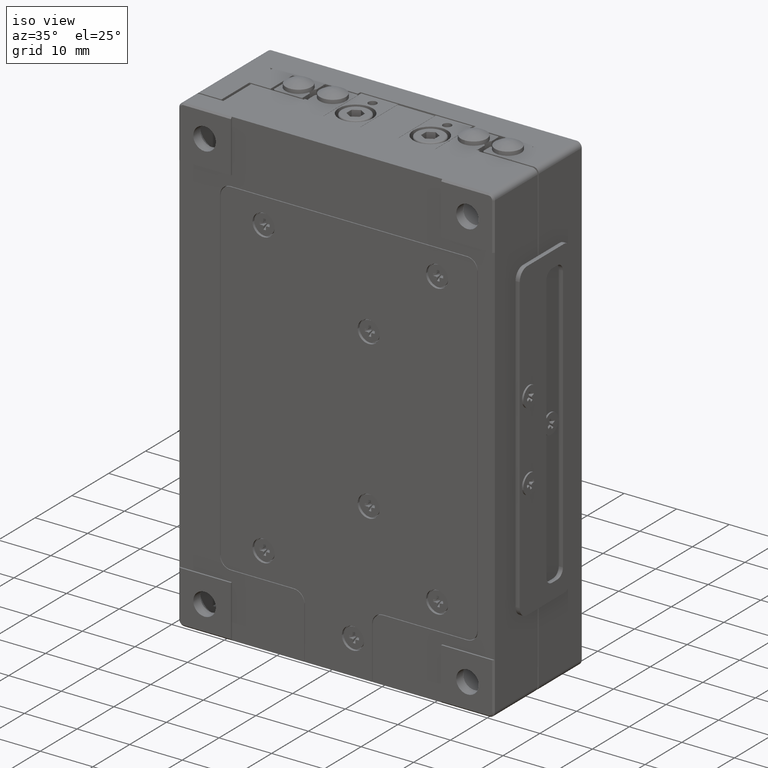
[diagram: clean part render]
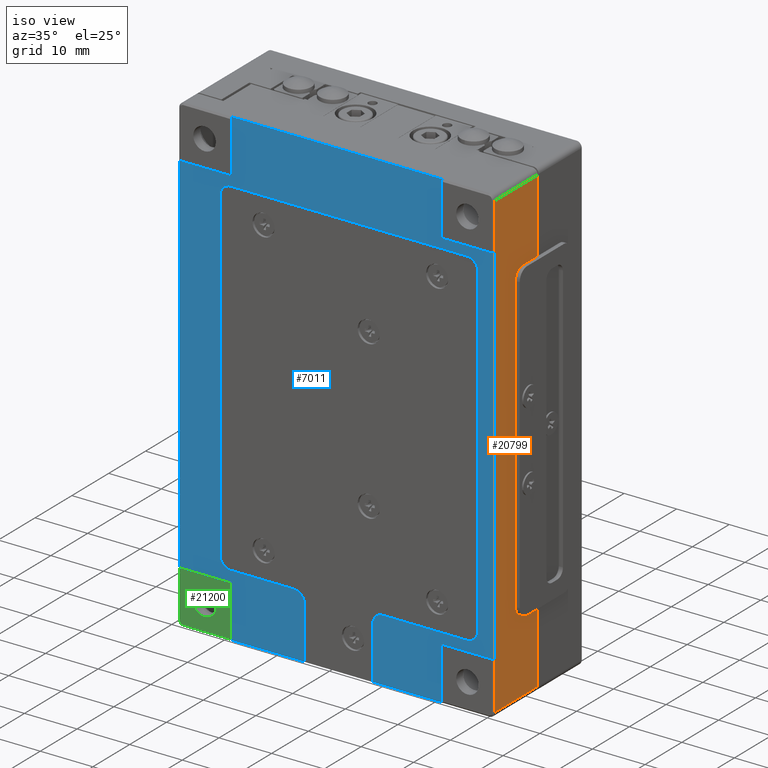
[diagram: same view with three faces highlighted in distinct colors, each labeled with its STEP entity id]
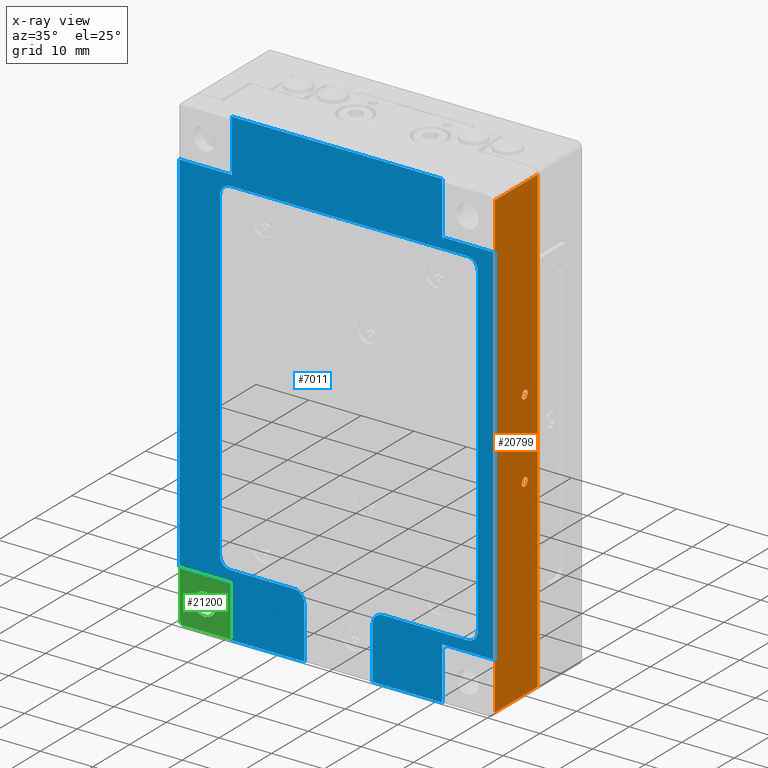
[diagram: x-ray of the same camera — body ghosted, the three highlighted faces saturated]
A machine part, iso view with three faces highlighted in distinct colors.
The next image is the same camera in x-ray (body ghosted, the three faces saturated) — at least one of them is partly hidden behind the body in this view.
Their STEP definitions:

[orange] entity #20799 — the highlighted planar face has unit normal (1, 0, 0).
#293 = DIRECTION ( 'NONE',  ( 0.000000000000000000, 0.000000000000000000, 1.000000000000000000 ) ) ;
#474 = EDGE_LOOP ( 'NONE', ( #22262, #25448 ) ) ;
#532 = CARTESIAN_POINT ( 'NONE',  ( 60.00000000000000000, 8.099999999999999645, -37.50000000000000000 ) ) ;
#789 = VERTEX_POINT ( 'NONE', #798 ) ;
#798 = CARTESIAN_POINT ( 'NONE',  ( 60.00000000000000000, 11.59999999999999964, -89.00000000000000000 ) ) ;
#1796 = EDGE_CURVE ( 'NONE', #25145, #789, #8923, .T. ) ;
#2211 = EDGE_CURVE ( 'NONE', #789, #17023, #4784, .T. ) ;
#2342 = EDGE_CURVE ( 'NONE', #17023, #27026, #15764, .T. ) ;
#2564 = VERTEX_POINT ( 'NONE', #2722 ) ;
#2611 = ORIENTED_EDGE ( 'NONE', *, *, #2342, .T. ) ;
#2722 = CARTESIAN_POINT ( 'NONE',  ( 60.00000000000000000, 8.099999999999999645, -53.29999999999999716 ) ) ;
#2788 = DIRECTION ( 'NONE',  ( 0.000000000000000000, -1.000000000000000000, 0.000000000000000000 ) ) ;
#3375 = AXIS2_PLACEMENT_3D ( 'NONE', #7335, #24654, #22549 ) ;
#3560 = CARTESIAN_POINT ( 'NONE',  ( 60.00000000000000000, 8.099999999999999645, -37.50000000000000000 ) ) ;
#3978 = LINE ( 'NONE', #6920, #8774 ) ;
#4167 = PLANE ( 'NONE',  #25187 ) ;
#4784 = LINE ( 'NONE', #23810, #12517 ) ;
#5511 = CARTESIAN_POINT ( 'NONE',  ( 60.00000000000000000, -5.258380536554699660E-15, -1.000000000000000000 ) ) ;
#5793 = CARTESIAN_POINT ( 'NONE',  ( 60.00000000000000000, 11.59999999999999964, -1.000000000000029976 ) ) ;
#5826 = DIRECTION ( 'NONE',  ( 1.000000000000000000, 0.000000000000000000, 0.000000000000000000 ) ) ;
#6801 = VECTOR ( 'NONE', #8638, 1000.000000000000000 ) ;
#6920 = CARTESIAN_POINT ( 'NONE',  ( 60.00000000000000000, -5.204170427930419706E-15, -90.00000000000000000 ) ) ;
#6985 = CIRCLE ( 'NONE', #3375, 0.7999999999999882760 ) ;
#7335 = CARTESIAN_POINT ( 'NONE',  ( 60.00000000000000000, 8.099999999999999645, -52.50000000000000000 ) ) ;
#8317 = ORIENTED_EDGE ( 'NONE', *, *, #9093, .F. ) ;
#8541 = DIRECTION ( 'NONE',  ( 0.000000000000000000, 1.000000000000000000, 0.000000000000000000 ) ) ;
#8638 = DIRECTION ( 'NONE',  ( 0.000000000000000000, 1.000000000000000000, 0.000000000000000000 ) ) ;
#8663 = DIRECTION ( 'NONE',  ( 0.000000000000000000, 0.000000000000000000, 1.000000000000000000 ) ) ;
#8774 = VECTOR ( 'NONE', #15790, 1000.000000000000000 ) ;
#8923 = LINE ( 'NONE', #26064, #6801 ) ;
#9093 = EDGE_CURVE ( 'NONE', #23279, #11467, #10780, .T. ) ;
#10038 = CARTESIAN_POINT ( 'NONE',  ( 60.00000000000000000, 8.099999999999999645, -52.50000000000000000 ) ) ;
#10322 = ORIENTED_EDGE ( 'NONE', *, *, #23873, .F. ) ;
#10780 = LINE ( 'NONE', #23453, #19990 ) ;
#10861 = CARTESIAN_POINT ( 'NONE',  ( 60.00000000000000000, 0.000000000000000000, -10.00000000000000000 ) ) ;
#11138 = EDGE_CURVE ( 'NONE', #2564, #11852, #6985, .T. ) ;
#11467 = VERTEX_POINT ( 'NONE', #10861 ) ;
#11748 = ORIENTED_EDGE ( 'NONE', *, *, #1796, .T. ) ;
#11852 = VERTEX_POINT ( 'NONE', #15829 ) ;
#12517 = VECTOR ( 'NONE', #293, 1000.000000000000000 ) ;
#12892 = CARTESIAN_POINT ( 'NONE',  ( 60.00000000000000000, 8.099999999999999645, -38.29999999999999716 ) ) ;
#13013 = VERTEX_POINT ( 'NONE', #21227 ) ;
#14172 = ORIENTED_EDGE ( 'NONE', *, *, #2211, .T. ) ;
#14706 = AXIS2_PLACEMENT_3D ( 'NONE', #10038, #18599, #27195 ) ;
#15175 = DIRECTION ( 'NONE',  ( 1.000000000000000000, 0.000000000000000000, 0.000000000000000000 ) ) ;
#15764 = LINE ( 'NONE', #19980, #22407 ) ;
#15790 = DIRECTION ( 'NONE',  ( 0.000000000000000000, 0.000000000000000000, -1.000000000000000000 ) ) ;
#15829 = CARTESIAN_POINT ( 'NONE',  ( 60.00000000000000000, 8.099999999999999645, -51.70000000000000284 ) ) ;
#15870 = CARTESIAN_POINT ( 'NONE',  ( 60.00000000000000000, 0.000000000000000000, -80.00000000000000000 ) ) ;
#16301 = AXIS2_PLACEMENT_3D ( 'NONE', #3560, #5826, #16951 ) ;
#16367 = ORIENTED_EDGE ( 'NONE', *, *, #25544, .T. ) ;
#16706 = FACE_BOUND ( 'NONE', #25369, .T. ) ;
#16951 = DIRECTION ( 'NONE',  ( 0.000000000000000000, 0.000000000000000000, -1.000000000000000000 ) ) ;
#17023 = VERTEX_POINT ( 'NONE', #5793 ) ;
#17120 = CARTESIAN_POINT ( 'NONE',  ( 60.00000000000000000, 11.59999999999999964, -90.00000000000000000 ) ) ;
#17604 = EDGE_CURVE ( 'NONE', #23279, #25145, #22377, .T. ) ;
#17697 = DIRECTION ( 'NONE',  ( 1.000000000000000000, 0.000000000000000000, 0.000000000000000000 ) ) ;
#17933 = ORIENTED_EDGE ( 'NONE', *, *, #26424, .F. ) ;
#18235 = VECTOR ( 'NONE', #20242, 1000.000000000000000 ) ;
#18599 = DIRECTION ( 'NONE',  ( 1.000000000000000000, 0.000000000000000000, 0.000000000000000000 ) ) ;
#19980 = CARTESIAN_POINT ( 'NONE',  ( 60.00000000000000000, -0.2999999999999999889, -1.000000000000000000 ) ) ;
#19990 = VECTOR ( 'NONE', #8663, 1000.000000000000000 ) ;
#20010 = CIRCLE ( 'NONE', #23643, 0.7999999999999882760 ) ;
#20242 = DIRECTION ( 'NONE',  ( 0.000000000000000000, 0.000000000000000000, -1.000000000000000000 ) ) ;
#20799 = ADVANCED_FACE ( 'NONE', ( #22906, #16706, #27816 ), #4167, .T. ) ;
#20804 = CIRCLE ( 'NONE', #16301, 0.7999999999999882760 ) ;
#21227 = CARTESIAN_POINT ( 'NONE',  ( 60.00000000000000000, 8.099999999999999645, -36.70000000000000284 ) ) ;
#22262 = ORIENTED_EDGE ( 'NONE', *, *, #11138, .F. ) ;
#22377 = LINE ( 'NONE', #26723, #18235 ) ;
#22407 = VECTOR ( 'NONE', #2788, 1000.000000000000000 ) ;
#22549 = DIRECTION ( 'NONE',  ( 0.000000000000000000, 0.000000000000000000, -1.000000000000000000 ) ) ;
#22906 = FACE_OUTER_BOUND ( 'NONE', #23782, .T. ) ;
#23279 = VERTEX_POINT ( 'NONE', #15870 ) ;
#23453 = CARTESIAN_POINT ( 'NONE',  ( 60.00000000000000000, 0.000000000000000000, -90.00000000000000000 ) ) ;
#23643 = AXIS2_PLACEMENT_3D ( 'NONE', #532, #17697, #26422 ) ;
#23782 = EDGE_LOOP ( 'NONE', ( #8317, #27553, #11748, #14172, #2611, #16367 ) ) ;
#23810 = CARTESIAN_POINT ( 'NONE',  ( 60.00000000000000000, 11.59999999999999964, -90.00000000000000000 ) ) ;
#23873 = EDGE_CURVE ( 'NONE', #13013, #26724, #20804, .T. ) ;
#24654 = DIRECTION ( 'NONE',  ( 1.000000000000000000, 0.000000000000000000, 0.000000000000000000 ) ) ;
#25145 = VERTEX_POINT ( 'NONE', #27088 ) ;
#25187 = AXIS2_PLACEMENT_3D ( 'NONE', #17120, #15175, #8541 ) ;
#25369 = EDGE_LOOP ( 'NONE', ( #17933, #10322 ) ) ;
#25448 = ORIENTED_EDGE ( 'NONE', *, *, #27093, .F. ) ;
#25544 = EDGE_CURVE ( 'NONE', #27026, #11467, #3978, .T. ) ;
#26064 = CARTESIAN_POINT ( 'NONE',  ( 60.00000000000000000, 11.59999999999999964, -89.00000000000000000 ) ) ;
#26343 = CIRCLE ( 'NONE', #14706, 0.7999999999999882760 ) ;
#26422 = DIRECTION ( 'NONE',  ( 0.000000000000000000, 0.000000000000000000, -1.000000000000000000 ) ) ;
#26424 = EDGE_CURVE ( 'NONE', #26724, #13013, #20010, .T. ) ;
#26723 = CARTESIAN_POINT ( 'NONE',  ( 60.00000000000000000, -1.908195823574490013E-14, -90.00000000000000000 ) ) ;
#26724 = VERTEX_POINT ( 'NONE', #12892 ) ;
#27026 = VERTEX_POINT ( 'NONE', #5511 ) ;
#27088 = CARTESIAN_POINT ( 'NONE',  ( 60.00000000000000000, -1.908195823574490013E-14, -89.00000000000000000 ) ) ;
#27093 = EDGE_CURVE ( 'NONE', #11852, #2564, #26343, .T. ) ;
#27195 = DIRECTION ( 'NONE',  ( 0.000000000000000000, 0.000000000000000000, -1.000000000000000000 ) ) ;
#27553 = ORIENTED_EDGE ( 'NONE', *, *, #17604, .T. ) ;
#27816 = FACE_BOUND ( 'NONE', #474, .T. ) ;

[blue] entity #7011 — the highlighted planar face has unit normal (0, -1, 0).
#73 = CARTESIAN_POINT ( 'NONE',  ( 23.75000000000000000, -1.908195823574490013E-14, -90.00000000000000000 ) ) ;
#76 = CARTESIAN_POINT ( 'NONE',  ( 3.061616997868384620E-15, 0.000000000000000000, -10.00000000000000000 ) ) ;
#77 = ORIENTED_EDGE ( 'NONE', *, *, #27442, .T. ) ;
#147 = AXIS2_PLACEMENT_3D ( 'NONE', #679, #7136, #15872 ) ;
#157 = DIRECTION ( 'NONE',  ( 0.000000000000000000, 0.000000000000000000, -1.000000000000000000 ) ) ;
#178 = ORIENTED_EDGE ( 'NONE', *, *, #25420, .T. ) ;
#218 = VERTEX_POINT ( 'NONE', #27064 ) ;
#295 = AXIS2_PLACEMENT_3D ( 'NONE', #10452, #6354, #23401 ) ;
#427 = DIRECTION ( 'NONE',  ( 0.000000000000000000, 0.000000000000000000, -1.000000000000000000 ) ) ;
#679 = CARTESIAN_POINT ( 'NONE',  ( 60.00000000000000000, 0.000000000000000000, -90.00000000000000000 ) ) ;
#711 = CARTESIAN_POINT ( 'NONE',  ( 50.00000000000000000, 0.000000000000000000, -10.00000000000000000 ) ) ;
#844 = CARTESIAN_POINT ( 'NONE',  ( 38.75000000000000000, 0.000000000000000000, -78.00000000000000000 ) ) ;
#963 = DIRECTION ( 'NONE',  ( 0.000000000000000000, 0.000000000000000000, 1.000000000000000000 ) ) ;
#1146 = LINE ( 'NONE', #9757, #1189 ) ;
#1189 = VECTOR ( 'NONE', #7621, 1000.000000000000000 ) ;
#1205 = VECTOR ( 'NONE', #4916, 1000.000000000000000 ) ;
#1207 = DIRECTION ( 'NONE',  ( 0.000000000000000000, 0.000000000000000000, -1.000000000000000000 ) ) ;
#1337 = VERTEX_POINT ( 'NONE', #20042 ) ;
#1445 = ORIENTED_EDGE ( 'NONE', *, *, #5601, .F. ) ;
#1449 = VECTOR ( 'NONE', #15526, 1000.000000000000000 ) ;
#1534 = DIRECTION ( 'NONE',  ( 1.000000000000000000, 0.000000000000000000, 0.000000000000000000 ) ) ;
#1537 = DIRECTION ( 'NONE',  ( 0.000000000000000000, 0.000000000000000000, -1.000000000000000000 ) ) ;
#1751 = CARTESIAN_POINT ( 'NONE',  ( 60.00000000000000000, 0.000000000000000000, -78.00000000000000000 ) ) ;
#1909 = VECTOR ( 'NONE', #21613, 1000.000000000000000 ) ;
#1989 = LINE ( 'NONE', #16921, #13695 ) ;
#2019 = DIRECTION ( 'NONE',  ( 0.000000000000000000, 1.000000000000000000, 0.000000000000000000 ) ) ;
#2156 = VECTOR ( 'NONE', #963, 1000.000000000000000 ) ;
#2265 = VECTOR ( 'NONE', #25672, 1000.000000000000000 ) ;
#2304 = DIRECTION ( 'NONE',  ( 0.000000000000000000, 0.000000000000000000, -1.000000000000000000 ) ) ;
#2443 = EDGE_CURVE ( 'NONE', #17312, #5944, #10799, .T. ) ;
#2595 = CARTESIAN_POINT ( 'NONE',  ( 0.000000000000000000, 0.000000000000000000, -10.00000000000000000 ) ) ;
#3088 = DIRECTION ( 'NONE',  ( 0.000000000000000000, 0.000000000000000000, -1.000000000000000000 ) ) ;
#3304 = CARTESIAN_POINT ( 'NONE',  ( 56.75000000000000000, 0.000000000000000000, -76.00000000000000000 ) ) ;
#3354 = CIRCLE ( 'NONE', #12857, 2.000000000000001776 ) ;
#3402 = VERTEX_POINT ( 'NONE', #8050 ) ;
#3429 = VERTEX_POINT ( 'NONE', #21559 ) ;
#3439 = ORIENTED_EDGE ( 'NONE', *, *, #10747, .T. ) ;
#3587 = LINE ( 'NONE', #7542, #13351 ) ;
#3693 = DIRECTION ( 'NONE',  ( 0.000000000000000000, 0.000000000000000000, -1.000000000000000000 ) ) ;
#3716 = VERTEX_POINT ( 'NONE', #844 ) ;
#3880 = ORIENTED_EDGE ( 'NONE', *, *, #8095, .T. ) ;
#3924 = CARTESIAN_POINT ( 'NONE',  ( 56.75000000000000000, 0.000000000000000000, -14.00000000000000000 ) ) ;
#4220 = VERTEX_POINT ( 'NONE', #73 ) ;
#4544 = ORIENTED_EDGE ( 'NONE', *, *, #27170, .T. ) ;
#4550 = VERTEX_POINT ( 'NONE', #16973 ) ;
#4815 = LINE ( 'NONE', #17620, #11247 ) ;
#4857 = ORIENTED_EDGE ( 'NONE', *, *, #20616, .T. ) ;
#4916 = DIRECTION ( 'NONE',  ( 1.000000000000000000, 0.000000000000000000, 0.000000000000000000 ) ) ;
#5022 = LINE ( 'NONE', #20092, #18890 ) ;
#5152 = CARTESIAN_POINT ( 'NONE',  ( 50.00000000000000000, 0.000000000000000000, -1.224646799147351876E-15 ) ) ;
#5237 = ORIENTED_EDGE ( 'NONE', *, *, #18356, .F. ) ;
#5601 = EDGE_CURVE ( 'NONE', #18608, #16328, #23777, .T. ) ;
#5765 = EDGE_CURVE ( 'NONE', #22269, #4220, #11796, .T. ) ;
#5766 = ORIENTED_EDGE ( 'NONE', *, *, #27059, .T. ) ;
#5919 = CARTESIAN_POINT ( 'NONE',  ( 54.75000000000000000, 0.000000000000000000, -12.00000000000000000 ) ) ;
#5944 = VERTEX_POINT ( 'NONE', #25434 ) ;
#6056 = VECTOR ( 'NONE', #27524, 1000.000000000000000 ) ;
#6061 = CARTESIAN_POINT ( 'NONE',  ( 10.00000000000000000, 0.000000000000000000, 0.000000000000000000 ) ) ;
#6354 = DIRECTION ( 'NONE',  ( 0.000000000000000000, -1.000000000000000000, 0.000000000000000000 ) ) ;
#6412 = DIRECTION ( 'NONE',  ( 0.000000000000000000, 1.000000000000000000, 0.000000000000000000 ) ) ;
#6462 = VECTOR ( 'NONE', #12823, 1000.000000000000000 ) ;
#6486 = LINE ( 'NONE', #13526, #12688 ) ;
#6523 = CARTESIAN_POINT ( 'NONE',  ( 10.00000000000000000, 0.000000000000000000, -90.00000000000000000 ) ) ;
#6576 = CIRCLE ( 'NONE', #20493, 2.000000000000000000 ) ;
#6952 = CARTESIAN_POINT ( 'NONE',  ( 7.750000000000000000, 0.000000000000000000, -14.00000000000000000 ) ) ;
#7011 = ADVANCED_FACE ( 'NONE', ( #17968 ), #22219, .T. ) ;
#7035 = DIRECTION ( 'NONE',  ( 2.102695122396129669E-16, 0.000000000000000000, -1.000000000000000000 ) ) ;
#7136 = DIRECTION ( 'NONE',  ( 0.000000000000000000, -1.000000000000000000, 0.000000000000000000 ) ) ;
#7174 = LINE ( 'NONE', #711, #1205 ) ;
#7224 = VERTEX_POINT ( 'NONE', #25569 ) ;
#7542 = CARTESIAN_POINT ( 'NONE',  ( 7.750000000000000000, 0.000000000000000000, -90.00000000000000000 ) ) ;
#7595 = VERTEX_POINT ( 'NONE', #9659 ) ;
#7621 = DIRECTION ( 'NONE',  ( 0.000000000000000000, 0.000000000000000000, 1.000000000000000000 ) ) ;
#7893 = DIRECTION ( 'NONE',  ( 0.000000000000000000, 1.000000000000000000, 0.000000000000000000 ) ) ;
#7931 = CARTESIAN_POINT ( 'NONE',  ( 38.75000000000000000, 0.000000000000000000, -80.00000000000000000 ) ) ;
#8050 = CARTESIAN_POINT ( 'NONE',  ( 10.00000000000000000, 0.000000000000000000, -10.00000000000000000 ) ) ;
#8095 = EDGE_CURVE ( 'NONE', #3429, #17234, #1989, .T. ) ;
#8297 = CIRCLE ( 'NONE', #18628, 2.000000000000001776 ) ;
#8311 = ORIENTED_EDGE ( 'NONE', *, *, #27313, .F. ) ;
#8603 = CARTESIAN_POINT ( 'NONE',  ( 10.00000000000000000, 0.000000000000000000, -80.00000000000000000 ) ) ;
#8618 = VECTOR ( 'NONE', #17553, 1000.000000000000000 ) ;
#8663 = DIRECTION ( 'NONE',  ( 0.000000000000000000, 0.000000000000000000, 1.000000000000000000 ) ) ;
#8873 = CIRCLE ( 'NONE', #21903, 2.000000000000000000 ) ;
#9005 = ORIENTED_EDGE ( 'NONE', *, *, #15778, .T. ) ;
#9093 = EDGE_CURVE ( 'NONE', #23279, #11467, #10780, .T. ) ;
#9121 = EDGE_CURVE ( 'NONE', #218, #3716, #12495, .T. ) ;
#9186 = VERTEX_POINT ( 'NONE', #6952 ) ;
#9302 = LINE ( 'NONE', #22933, #2156 ) ;
#9454 = ORIENTED_EDGE ( 'NONE', *, *, #2443, .F. ) ;
#9625 = VERTEX_POINT ( 'NONE', #19966 ) ;
#9659 = CARTESIAN_POINT ( 'NONE',  ( 50.00000000000000000, 0.000000000000000000, -80.00000000000000000 ) ) ;
#9757 = CARTESIAN_POINT ( 'NONE',  ( 23.75000000000000000, 0.000000000000000000, -90.00000000000000000 ) ) ;
#10452 = CARTESIAN_POINT ( 'NONE',  ( 21.75000000000000000, 0.000000000000000000, -80.00000000000000000 ) ) ;
#10459 = EDGE_CURVE ( 'NONE', #9186, #4550, #6576, .T. ) ;
#10495 = LINE ( 'NONE', #18914, #2265 ) ;
#10747 = EDGE_CURVE ( 'NONE', #3716, #7224, #3354, .T. ) ;
#10780 = LINE ( 'NONE', #23453, #19990 ) ;
#10799 = LINE ( 'NONE', #14501, #21059 ) ;
#10861 = CARTESIAN_POINT ( 'NONE',  ( 60.00000000000000000, 0.000000000000000000, -10.00000000000000000 ) ) ;
#11216 = CARTESIAN_POINT ( 'NONE',  ( 36.75000000000000000, -1.908195823574490013E-14, -90.00000000000000000 ) ) ;
#11247 = VECTOR ( 'NONE', #17218, 1000.000000000000000 ) ;
#11467 = VERTEX_POINT ( 'NONE', #10861 ) ;
#11517 = LINE ( 'NONE', #5152, #27274 ) ;
#11788 = ORIENTED_EDGE ( 'NONE', *, *, #9121, .T. ) ;
#11796 = LINE ( 'NONE', #18374, #20286 ) ;
#11798 = VERTEX_POINT ( 'NONE', #17921 ) ;
#12495 = LINE ( 'NONE', #1751, #6056 ) ;
#12688 = VECTOR ( 'NONE', #7035, 1000.000000000000000 ) ;
#12823 = DIRECTION ( 'NONE',  ( 1.000000000000000000, 0.000000000000000000, 0.000000000000000000 ) ) ;
#12857 = AXIS2_PLACEMENT_3D ( 'NONE', #7931, #16518, #3693 ) ;
#13102 = VERTEX_POINT ( 'NONE', #13486 ) ;
#13108 = ORIENTED_EDGE ( 'NONE', *, *, #18009, .T. ) ;
#13351 = VECTOR ( 'NONE', #22615, 1000.000000000000000 ) ;
#13486 = CARTESIAN_POINT ( 'NONE',  ( 23.75000000000000000, 0.000000000000000000, -80.00000000000000000 ) ) ;
#13526 = CARTESIAN_POINT ( 'NONE',  ( 56.75000000000000000, 0.000000000000000000, -90.00000000000000000 ) ) ;
#13640 = DIRECTION ( 'NONE',  ( 1.000000000000000000, 0.000000000000000000, 7.080503983578799386E-17 ) ) ;
#13695 = VECTOR ( 'NONE', #21143, 1000.000000000000000 ) ;
#13699 = CARTESIAN_POINT ( 'NONE',  ( 60.00000000000000000, 0.000000000000000000, -80.00000000000000000 ) ) ;
#13878 = VERTEX_POINT ( 'NONE', #5919 ) ;
#14373 = EDGE_CURVE ( 'NONE', #16328, #21020, #18695, .T. ) ;
#14501 = CARTESIAN_POINT ( 'NONE',  ( 60.00000000000000000, 0.000000000000000000, 0.000000000000000000 ) ) ;
#14667 = VERTEX_POINT ( 'NONE', #3304 ) ;
#14786 = CARTESIAN_POINT ( 'NONE',  ( 60.00000000000000000, 0.000000000000000000, -90.00000000000000000 ) ) ;
#14871 = ORIENTED_EDGE ( 'NONE', *, *, #18851, .F. ) ;
#15057 = DIRECTION ( 'NONE',  ( 0.000000000000000000, 0.000000000000000000, 1.000000000000000000 ) ) ;
#15149 = CIRCLE ( 'NONE', #295, 2.000000000000001776 ) ;
#15526 = DIRECTION ( 'NONE',  ( -1.000000000000000000, 0.000000000000000000, 1.387778780781446070E-15 ) ) ;
#15778 = EDGE_CURVE ( 'NONE', #23569, #1337, #16732, .T. ) ;
#15870 = CARTESIAN_POINT ( 'NONE',  ( 60.00000000000000000, 0.000000000000000000, -80.00000000000000000 ) ) ;
#15872 = DIRECTION ( 'NONE',  ( 0.000000000000000000, 0.000000000000000000, -1.000000000000000000 ) ) ;
#16024 = ORIENTED_EDGE ( 'NONE', *, *, #26043, .F. ) ;
#16328 = VERTEX_POINT ( 'NONE', #26388 ) ;
#16518 = DIRECTION ( 'NONE',  ( 0.000000000000000000, -1.000000000000000000, 0.000000000000000000 ) ) ;
#16535 = ORIENTED_EDGE ( 'NONE', *, *, #20106, .T. ) ;
#16672 = ORIENTED_EDGE ( 'NONE', *, *, #9093, .T. ) ;
#16732 = LINE ( 'NONE', #14786, #6462 ) ;
#16921 = CARTESIAN_POINT ( 'NONE',  ( 60.00000000000000000, 0.000000000000000000, -78.00000000000000000 ) ) ;
#16973 = CARTESIAN_POINT ( 'NONE',  ( 9.750000000000000000, 0.000000000000000000, -12.00000000000000000 ) ) ;
#17008 = CARTESIAN_POINT ( 'NONE',  ( 0.000000000000000000, 0.000000000000000000, -90.00000000000000000 ) ) ;
#17218 = DIRECTION ( 'NONE',  ( 0.000000000000000000, 0.000000000000000000, -1.000000000000000000 ) ) ;
#17234 = VERTEX_POINT ( 'NONE', #23526 ) ;
#17312 = VERTEX_POINT ( 'NONE', #6061 ) ;
#17553 = DIRECTION ( 'NONE',  ( -1.000000000000000000, 0.000000000000000000, 0.000000000000000000 ) ) ;
#17620 = CARTESIAN_POINT ( 'NONE',  ( 36.75000000000000000, 0.000000000000000000, -90.00000000000000000 ) ) ;
#17637 = AXIS2_PLACEMENT_3D ( 'NONE', #21975, #2019, #427 ) ;
#17921 = CARTESIAN_POINT ( 'NONE',  ( 50.00000000000000000, 0.000000000000000000, -10.00000000000000000 ) ) ;
#17957 = EDGE_CURVE ( 'NONE', #5944, #11798, #11517, .T. ) ;
#17968 = FACE_OUTER_BOUND ( 'NONE', #19442, .T. ) ;
#18009 = EDGE_CURVE ( 'NONE', #9625, #9186, #3587, .T. ) ;
#18158 = ORIENTED_EDGE ( 'NONE', *, *, #14373, .F. ) ;
#18201 = VECTOR ( 'NONE', #157, 1000.000000000000000 ) ;
#18299 = CARTESIAN_POINT ( 'NONE',  ( 54.75000000000000000, 0.000000000000000000, -76.00000000000000000 ) ) ;
#18356 = EDGE_CURVE ( 'NONE', #21020, #3402, #19343, .T. ) ;
#18374 = CARTESIAN_POINT ( 'NONE',  ( 60.00000000000000000, 0.000000000000000000, -90.00000000000000000 ) ) ;
#18452 = ORIENTED_EDGE ( 'NONE', *, *, #10459, .T. ) ;
#18608 = VERTEX_POINT ( 'NONE', #8603 ) ;
#18628 = AXIS2_PLACEMENT_3D ( 'NONE', #18299, #7893, #3088 ) ;
#18695 = LINE ( 'NONE', #17008, #19884 ) ;
#18851 = EDGE_CURVE ( 'NONE', #22269, #18608, #9302, .T. ) ;
#18890 = VECTOR ( 'NONE', #13640, 1000.000000000000000 ) ;
#18914 = CARTESIAN_POINT ( 'NONE',  ( 10.00000000000000000, 0.000000000000000000, -10.00000000000000000 ) ) ;
#19343 = LINE ( 'NONE', #76, #1909 ) ;
#19442 = EDGE_LOOP ( 'NONE', ( #5766, #4544, #3880, #24744, #13108, #18452, #4857, #77, #22841, #178, #11788, #3439, #16535, #9005, #16024, #25822, #16672, #8311, #26216, #9454, #21595, #5237, #18158, #1445, #14871, #23460 ) ) ;
#19884 = VECTOR ( 'NONE', #15057, 1000.000000000000000 ) ;
#19966 = CARTESIAN_POINT ( 'NONE',  ( 7.750000000000000000, 0.000000000000000000, -76.00000000000000000 ) ) ;
#19990 = VECTOR ( 'NONE', #8663, 1000.000000000000000 ) ;
#20042 = CARTESIAN_POINT ( 'NONE',  ( 50.00000000000000000, 0.000000000000000000, -90.00000000000000000 ) ) ;
#20092 = CARTESIAN_POINT ( 'NONE',  ( 60.00000000000000000, 0.000000000000000000, -12.00000000000000000 ) ) ;
#20106 = EDGE_CURVE ( 'NONE', #7224, #23569, #4815, .T. ) ;
#20286 = VECTOR ( 'NONE', #26972, 1000.000000000000000 ) ;
#20493 = AXIS2_PLACEMENT_3D ( 'NONE', #23737, #6412, #2304 ) ;
#20616 = EDGE_CURVE ( 'NONE', #4550, #13878, #5022, .T. ) ;
#20675 = DIRECTION ( 'NONE',  ( 0.000000000000000000, 1.000000000000000000, 0.000000000000000000 ) ) ;
#21020 = VERTEX_POINT ( 'NONE', #2595 ) ;
#21059 = VECTOR ( 'NONE', #1534, 1000.000000000000000 ) ;
#21143 = DIRECTION ( 'NONE',  ( -1.000000000000000000, 0.000000000000000000, 0.000000000000000000 ) ) ;
#21257 = EDGE_CURVE ( 'NONE', #3402, #17312, #10495, .T. ) ;
#21504 = EDGE_CURVE ( 'NONE', #27656, #14667, #6486, .T. ) ;
#21559 = CARTESIAN_POINT ( 'NONE',  ( 21.75000000000000000, 0.000000000000000000, -78.00000000000000000 ) ) ;
#21595 = ORIENTED_EDGE ( 'NONE', *, *, #21257, .F. ) ;
#21613 = DIRECTION ( 'NONE',  ( 1.000000000000000000, 0.000000000000000000, 0.000000000000000000 ) ) ;
#21903 = AXIS2_PLACEMENT_3D ( 'NONE', #24500, #20675, #1537 ) ;
#21975 = CARTESIAN_POINT ( 'NONE',  ( 9.750000000000000000, 0.000000000000000000, -76.00000000000000000 ) ) ;
#22070 = CARTESIAN_POINT ( 'NONE',  ( 10.00000000000000000, 0.000000000000000000, -80.00000000000000000 ) ) ;
#22159 = CIRCLE ( 'NONE', #17637, 2.000000000000001776 ) ;
#22219 = PLANE ( 'NONE',  #147 ) ;
#22269 = VERTEX_POINT ( 'NONE', #6523 ) ;
#22308 = EDGE_CURVE ( 'NONE', #23279, #7595, #24242, .T. ) ;
#22615 = DIRECTION ( 'NONE',  ( -1.182766006347821876E-16, 0.000000000000000000, 1.000000000000000000 ) ) ;
#22841 = ORIENTED_EDGE ( 'NONE', *, *, #21504, .T. ) ;
#22933 = CARTESIAN_POINT ( 'NONE',  ( 10.00000000000000000, 0.000000000000000000, -90.00000000000000000 ) ) ;
#23279 = VERTEX_POINT ( 'NONE', #15870 ) ;
#23401 = DIRECTION ( 'NONE',  ( 0.000000000000000000, 0.000000000000000000, -1.000000000000000000 ) ) ;
#23453 = CARTESIAN_POINT ( 'NONE',  ( 60.00000000000000000, 0.000000000000000000, -90.00000000000000000 ) ) ;
#23460 = ORIENTED_EDGE ( 'NONE', *, *, #5765, .T. ) ;
#23526 = CARTESIAN_POINT ( 'NONE',  ( 9.750000000000000000, 0.000000000000000000, -78.00000000000000000 ) ) ;
#23569 = VERTEX_POINT ( 'NONE', #11216 ) ;
#23737 = CARTESIAN_POINT ( 'NONE',  ( 9.750000000000000000, 0.000000000000000000, -14.00000000000000000 ) ) ;
#23777 = LINE ( 'NONE', #22070, #8618 ) ;
#23940 = LINE ( 'NONE', #26315, #18201 ) ;
#24063 = EDGE_CURVE ( 'NONE', #17234, #9625, #22159, .T. ) ;
#24242 = LINE ( 'NONE', #13699, #1449 ) ;
#24500 = CARTESIAN_POINT ( 'NONE',  ( 54.75000000000000000, 0.000000000000000000, -14.00000000000000000 ) ) ;
#24744 = ORIENTED_EDGE ( 'NONE', *, *, #24063, .T. ) ;
#25420 = EDGE_CURVE ( 'NONE', #14667, #218, #8297, .T. ) ;
#25434 = CARTESIAN_POINT ( 'NONE',  ( 50.00000000000000000, 0.000000000000000000, -1.224646799147351876E-15 ) ) ;
#25569 = CARTESIAN_POINT ( 'NONE',  ( 36.75000000000000000, 0.000000000000000000, -80.00000000000000000 ) ) ;
#25672 = DIRECTION ( 'NONE',  ( 0.000000000000000000, 0.000000000000000000, 1.000000000000000000 ) ) ;
#25822 = ORIENTED_EDGE ( 'NONE', *, *, #22308, .F. ) ;
#26043 = EDGE_CURVE ( 'NONE', #7595, #1337, #23940, .T. ) ;
#26216 = ORIENTED_EDGE ( 'NONE', *, *, #17957, .F. ) ;
#26315 = CARTESIAN_POINT ( 'NONE',  ( 50.00000000000000000, 0.000000000000000000, -80.00000000000000000 ) ) ;
#26388 = CARTESIAN_POINT ( 'NONE',  ( 0.000000000000000000, 0.000000000000000000, -80.00000000000000000 ) ) ;
#26972 = DIRECTION ( 'NONE',  ( 1.000000000000000000, 0.000000000000000000, 0.000000000000000000 ) ) ;
#27059 = EDGE_CURVE ( 'NONE', #4220, #13102, #1146, .T. ) ;
#27064 = CARTESIAN_POINT ( 'NONE',  ( 54.75000000000000000, 0.000000000000000000, -78.00000000000000000 ) ) ;
#27170 = EDGE_CURVE ( 'NONE', #13102, #3429, #15149, .T. ) ;
#27274 = VECTOR ( 'NONE', #1207, 1000.000000000000000 ) ;
#27313 = EDGE_CURVE ( 'NONE', #11798, #11467, #7174, .T. ) ;
#27442 = EDGE_CURVE ( 'NONE', #13878, #27656, #8873, .T. ) ;
#27524 = DIRECTION ( 'NONE',  ( -1.000000000000000000, 0.000000000000000000, 0.000000000000000000 ) ) ;
#27656 = VERTEX_POINT ( 'NONE', #3924 ) ;

[green] entity #21200 — the highlighted planar face has unit normal (0, -1, 0).
#47 = DIRECTION ( 'NONE',  ( -1.000000000000000000, 0.000000000000000000, 0.000000000000000000 ) ) ;
#145 = CARTESIAN_POINT ( 'NONE',  ( 10.00000000000000000, -0.2999999999999999889, -89.70000000000000284 ) ) ;
#1606 = DIRECTION ( 'NONE',  ( 0.000000000000000000, -1.000000000000000000, 0.000000000000000000 ) ) ;
#1741 = CARTESIAN_POINT ( 'NONE',  ( 0.000000000000000000, -0.2999999999999999889, 0.000000000000000000 ) ) ;
#2041 = VERTEX_POINT ( 'NONE', #21276 ) ;
#3705 = VERTEX_POINT ( 'NONE', #4918 ) ;
#4394 = DIRECTION ( 'NONE',  ( 0.000000000000000000, 0.000000000000000000, 1.000000000000000000 ) ) ;
#4517 = EDGE_CURVE ( 'NONE', #3705, #5881, #14879, .T. ) ;
#4918 = CARTESIAN_POINT ( 'NONE',  ( 0.2999999999999810041, -0.2999999999999999889, -80.00000000000000000 ) ) ;
#5041 = ORIENTED_EDGE ( 'NONE', *, *, #4517, .T. ) ;
#5554 = ORIENTED_EDGE ( 'NONE', *, *, #10849, .T. ) ;
#5579 = CIRCLE ( 'NONE', #9636, 0.7000000000000200506 ) ;
#5881 = VERTEX_POINT ( 'NONE', #27682 ) ;
#6107 = CARTESIAN_POINT ( 'NONE',  ( 10.00000000000000000, -0.2999999999999999889, -80.00000000000000000 ) ) ;
#6394 = EDGE_CURVE ( 'NONE', #17300, #21333, #15389, .T. ) ;
#7213 = CARTESIAN_POINT ( 'NONE',  ( 1.000000000000000000, -0.2999999999999999889, -89.00000000000000000 ) ) ;
#7353 = ORIENTED_EDGE ( 'NONE', *, *, #7990, .T. ) ;
#7626 = ORIENTED_EDGE ( 'NONE', *, *, #21566, .T. ) ;
#7709 = VECTOR ( 'NONE', #12640, 1000.000000000000000 ) ;
#7767 = DIRECTION ( 'NONE',  ( 0.000000000000000000, 0.000000000000000000, -1.000000000000000000 ) ) ;
#7799 = FACE_BOUND ( 'NONE', #16542, .T. ) ;
#7990 = EDGE_CURVE ( 'NONE', #5881, #16962, #5579, .T. ) ;
#8083 = PLANE ( 'NONE',  #20261 ) ;
#8151 = AXIS2_PLACEMENT_3D ( 'NONE', #21962, #26026, #24072 ) ;
#8529 = CARTESIAN_POINT ( 'NONE',  ( 0.2999999999999804490, -0.2999999999999999889, 0.000000000000000000 ) ) ;
#9057 = DIRECTION ( 'NONE',  ( 0.000000000000000000, 0.000000000000000000, 1.000000000000000000 ) ) ;
#9636 = AXIS2_PLACEMENT_3D ( 'NONE', #7213, #26636, #7767 ) ;
#9835 = VERTEX_POINT ( 'NONE', #25309 ) ;
#10626 = LINE ( 'NONE', #6107, #11810 ) ;
#10849 = EDGE_CURVE ( 'NONE', #9835, #2041, #26319, .T. ) ;
#11810 = VECTOR ( 'NONE', #47, 1000.000000000000000 ) ;
#12640 = DIRECTION ( 'NONE',  ( 0.000000000000000000, 0.000000000000000000, -1.000000000000000000 ) ) ;
#12996 = LINE ( 'NONE', #21557, #14233 ) ;
#13012 = DIRECTION ( 'NONE',  ( 0.000000000000000000, 1.000000000000000000, 0.000000000000000000 ) ) ;
#13589 = ORIENTED_EDGE ( 'NONE', *, *, #6394, .T. ) ;
#14233 = VECTOR ( 'NONE', #21430, 1000.000000000000000 ) ;
#14385 = CARTESIAN_POINT ( 'NONE',  ( 10.00000000000000000, -0.2999999999999999889, -80.00000000000000000 ) ) ;
#14879 = LINE ( 'NONE', #8529, #7709 ) ;
#15389 = LINE ( 'NONE', #19457, #25718 ) ;
#16542 = EDGE_LOOP ( 'NONE', ( #5554, #7626 ) ) ;
#16820 = EDGE_LOOP ( 'NONE', ( #23793, #5041, #7353, #19025, #13589 ) ) ;
#16962 = VERTEX_POINT ( 'NONE', #22706 ) ;
#17300 = VERTEX_POINT ( 'NONE', #145 ) ;
#19025 = ORIENTED_EDGE ( 'NONE', *, *, #27125, .T. ) ;
#19133 = AXIS2_PLACEMENT_3D ( 'NONE', #19184, #13012, #4394 ) ;
#19184 = CARTESIAN_POINT ( 'NONE',  ( 5.000000000000000000, -0.2999999999999999889, -85.00000000000000000 ) ) ;
#19457 = CARTESIAN_POINT ( 'NONE',  ( 10.00000000000000000, -0.2999999999999999889, -90.00000000000000000 ) ) ;
#20261 = AXIS2_PLACEMENT_3D ( 'NONE', #1741, #1606, #23016 ) ;
#21200 = ADVANCED_FACE ( 'NONE', ( #27080, #7799 ), #8083, .T. ) ;
#21276 = CARTESIAN_POINT ( 'NONE',  ( 5.000000000000000000, -0.2999999999999999889, -87.15000000000000568 ) ) ;
#21333 = VERTEX_POINT ( 'NONE', #14385 ) ;
#21430 = DIRECTION ( 'NONE',  ( 1.000000000000000000, 0.000000000000000000, 0.000000000000000000 ) ) ;
#21557 = CARTESIAN_POINT ( 'NONE',  ( 0.000000000000000000, -0.2999999999999999889, -89.70000000000000284 ) ) ;
#21566 = EDGE_CURVE ( 'NONE', #2041, #9835, #27027, .T. ) ;
#21962 = CARTESIAN_POINT ( 'NONE',  ( 5.000000000000000000, -0.2999999999999999889, -85.00000000000000000 ) ) ;
#22213 = EDGE_CURVE ( 'NONE', #21333, #3705, #10626, .T. ) ;
#22706 = CARTESIAN_POINT ( 'NONE',  ( 1.000000000000000000, -0.2999999999999999889, -89.70000000000000284 ) ) ;
#23016 = DIRECTION ( 'NONE',  ( 0.000000000000000000, 0.000000000000000000, -1.000000000000000000 ) ) ;
#23793 = ORIENTED_EDGE ( 'NONE', *, *, #22213, .T. ) ;
#24072 = DIRECTION ( 'NONE',  ( 0.000000000000000000, 0.000000000000000000, 1.000000000000000000 ) ) ;
#25309 = CARTESIAN_POINT ( 'NONE',  ( 5.000000000000000000, -0.2999999999999999889, -82.84999999999999432 ) ) ;
#25718 = VECTOR ( 'NONE', #9057, 1000.000000000000000 ) ;
#26026 = DIRECTION ( 'NONE',  ( 0.000000000000000000, 1.000000000000000000, 0.000000000000000000 ) ) ;
#26319 = CIRCLE ( 'NONE', #19133, 2.149999999999999023 ) ;
#26636 = DIRECTION ( 'NONE',  ( 0.000000000000000000, -1.000000000000000000, 0.000000000000000000 ) ) ;
#27027 = CIRCLE ( 'NONE', #8151, 2.149999999999999023 ) ;
#27080 = FACE_OUTER_BOUND ( 'NONE', #16820, .T. ) ;
#27125 = EDGE_CURVE ( 'NONE', #16962, #17300, #12996, .T. ) ;
#27682 = CARTESIAN_POINT ( 'NONE',  ( 0.2999999999999799494, -0.2999999999999999889, -89.00000000000000000 ) ) ;